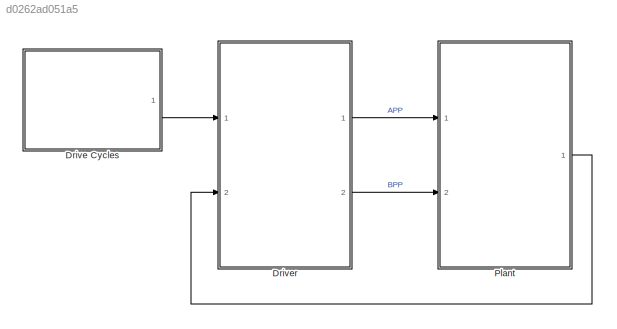
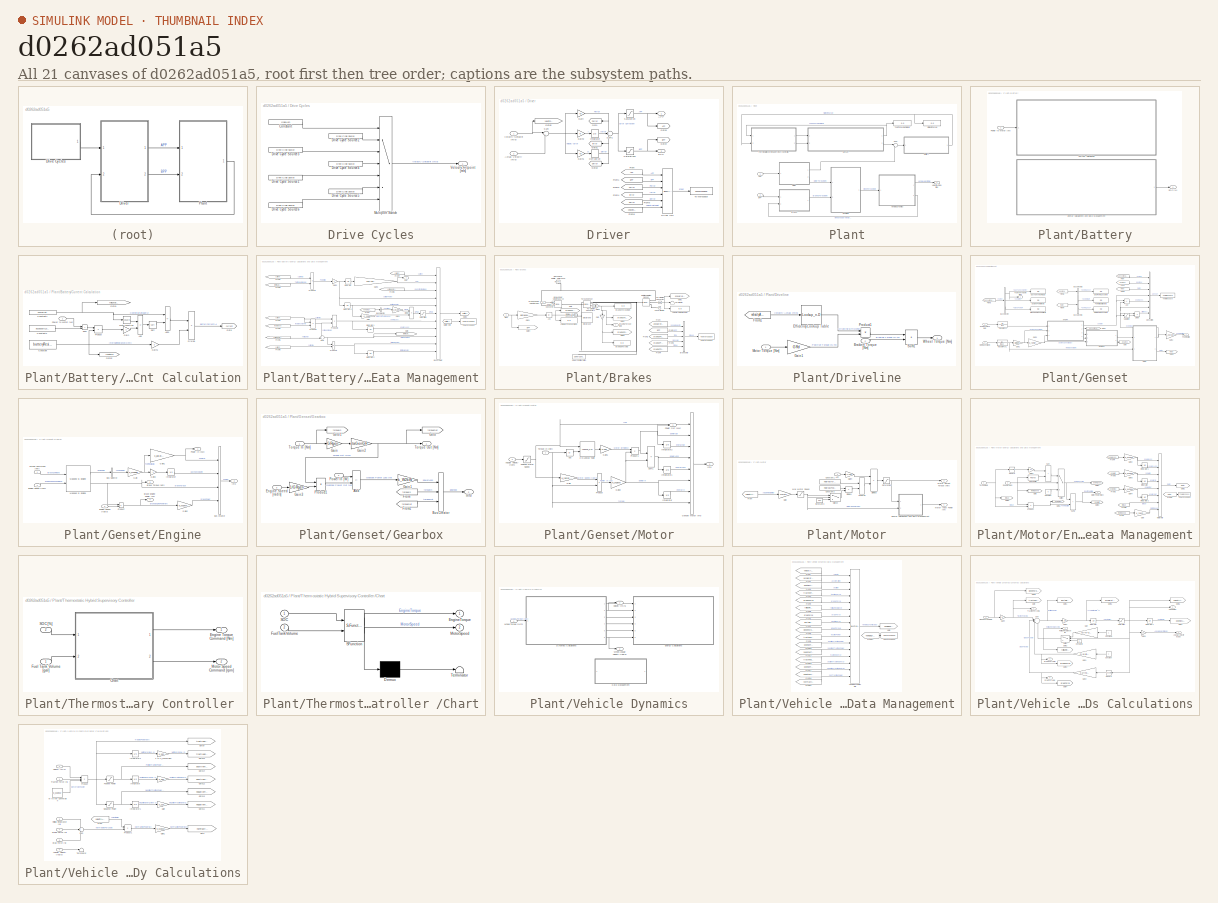
[diagram: thumbnail index - all 21 canvases of the model, root first then tree order]
MODEL slx_d0262ad051a5
KIND model
CONFIG AbsTol = auto
CONFIG EnableMultiTasking = off
CONFIG FixedStep = dt
CONFIG MaxStep = auto
CONFIG MinStep = auto
CONFIG RelTol = 1e-3
CONFIG SampleTimeConstraint = Unconstrained
CONFIG SolverName = ode4
CONFIG StartTime = 0
CONFIG StopTime = tEnd
BLOCK [SubSystem] Drive Cycles
  Ports = [0, 1]
  RequestExecContextInheritance = off
BLOCK [Constant] Drive Cycles/Constant
  Value = cycleNum
BLOCK [Reference] Drive Cycles/Drive Cycle Source1  REF=autolibshared/Drive Cycle Source
  AttributesFormatString = %<cycleVar> (%<tfinal>)
  Ports = [0, 1]
  SourceBlock = autolibshared/Drive Cycle Source
  SourceProductBaseCode = PW,DR,MT,UV,VE
  SourceType = Drive Cycle Source
BLOCK [Reference] Drive Cycles/Drive Cycle Source2  REF=autolibshared/Drive Cycle Source
  AttributesFormatString = %<cycleVar> (%<tfinal>)
  Ports = [0, 1]
  SourceBlock = autolibshared/Drive Cycle Source
  SourceProductBaseCode = PW,DR,MT,UV,VE
  SourceType = Drive Cycle Source
BLOCK [Reference] Drive Cycles/Drive Cycle Source3  REF=autolibshared/Drive Cycle Source
  AttributesFormatString = %<cycleVar> (%<tfinal>)
  Ports = [0, 1]
  SourceBlock = autolibshared/Drive Cycle Source
  SourceProductBaseCode = PW,DR,MT,UV,VE
  SourceType = Drive Cycle Source
BLOCK [Reference] Drive Cycles/Drive Cycle Source4  REF=autolibshared/Drive Cycle Source
  AttributesFormatString = %<cycleVar> (%<tfinal>)
  Ports = [0, 1]
  SourceBlock = autolibshared/Drive Cycle Source
  SourceProductBaseCode = PW,DR,MT,UV,VE
  SourceType = Drive Cycle Source
BLOCK [Reference] Drive Cycles/Drive Cycle Source5  REF=autolibshared/Drive Cycle Source
  AttributesFormatString = %<cycleVar> (%<tfinal>)
  Ports = [0, 1]
  SourceBlock = autolibshared/Drive Cycle Source
  SourceProductBaseCode = PW,DR,MT,UV,VE
  SourceType = Drive Cycle Source
BLOCK [Reference] Drive Cycles/Drive Cycle Source6  REF=autolibshared/Drive Cycle Source
  AttributesFormatString = %<cycleVar> (%<tfinal>)
  Ports = [0, 1]
  SourceBlock = autolibshared/Drive Cycle Source
  SourceProductBaseCode = PW,DR,MT,UV,VE
  SourceType = Drive Cycle Source
BLOCK [MultiPortSwitch] Drive Cycles/Multiport Switch
  InputSameDT = off
  Inputs = 6
  Ports = [7, 1]
  SaturateOnIntegerOverflow = off
BLOCK [Outport] Drive Cycles/Velocity Setpoint [m//s]
  NameLocation = top
BLOCK [SubSystem] Driver
  Ports = [2, 2]
  RequestExecContextInheritance = off
BLOCK [Outport] Driver/APP
BLOCK [Inport] Driver/Actual Velocity [m//s]
  Port = 2
BLOCK [Outport] Driver/BPP
  Port = 2
BLOCK [Derivative] Driver/Derivative
BLOCK [BusCreator] Driver/Driver Info
  DisplayOption = bar
  InheritFromInputs = on
  Inputs = 6
  Ports = [6, 1]
BLOCK [From] Driver/From
  GotoTag = APP
BLOCK [From] Driver/From1
  GotoTag = BPP
BLOCK [From] Driver/From3
  GotoTag = Perror
BLOCK [From] Driver/From4
  GotoTag = Ierror
BLOCK [From] Driver/From5
  GotoTag = Derror
BLOCK [From] Driver/From6
  GotoTag = velocitySetpoint
BLOCK [Gain] Driver/Gain
  Gain = Kp
BLOCK [Gain] Driver/Gain1
  Gain = Kd
BLOCK [Gain] Driver/Gain2
  Gain = Ki
BLOCK [Goto] Driver/Goto
  GotoTag = Perror
  NameLocation = top
BLOCK [Goto] Driver/Goto1
  GotoTag = Ierror
  NameLocation = top
BLOCK [Goto] Driver/Goto2
  GotoTag = Derror
  NameLocation = top
BLOCK [Goto] Driver/Goto3
  GotoTag = APP
BLOCK [Goto] Driver/Goto4
  GotoTag = BPP
BLOCK [Goto] Driver/Goto5
  GotoTag = velocitySetpoint
BLOCK [Integrator] Driver/Integrator
  Ports = [1, 1]
BLOCK [Saturate] Driver/Saturation
  LowerLimit = 0
  UpperLimit = 100
BLOCK [Saturate] Driver/Saturation1
  LowerLimit = -100
  UpperLimit = 0
BLOCK [Sum] Driver/Sum
  Inputs = |+-
  Ports = [2, 1]
BLOCK [Sum] Driver/Sum1
  Inputs = +++
  Ports = [3, 1]
BLOCK [ToWorkspace] Driver/To Workspace
  FixptAsFi = on
  MaxDataPoints = inf
  Ports = [1]
  SampleTime = -1
  SaveFormat = Timeseries
  VariableName = driver
BLOCK [Inport] Driver/Velocity Setpoint [m//s]
BLOCK [SubSystem] Plant
  Ports = [2, 1]
  RequestExecContextInheritance = off
BLOCK [Inport] Plant/APP
BLOCK [Inport] Plant/BPP
  Port = 2
BLOCK [SubSystem] Plant/Battery
  Ports = [1, 1]
  RequestExecContextInheritance = off
BLOCK [SubSystem] Plant/Battery/Current Calculation
  Ports = [1]
  RequestExecContextInheritance = off
BLOCK [Sum] Plant/Battery/Current Calculation/Add
  IconShape = rectangular
  Inputs = +-
  Ports = [2, 1]
BLOCK [Sum] Plant/Battery/Current Calculation/Add1
  IconShape = rectangular
  Inputs = +-
  Ports = [2, 1]
BLOCK [Constant] Plant/Battery/Current Calculation/Constant
  Value = batteryResistance
BLOCK [Constant] Plant/Battery/Current Calculation/Constant1
  SampleTime = -1
  Value = openCircuitVoltage
BLOCK [Constant] Plant/Battery/Current Calculation/Constant2
  Value = accessoryLoad
BLOCK [Product] Plant/Battery/Current Calculation/Divide
  Inputs = */
  Ports = [2, 1]
BLOCK [Gain] Plant/Battery/Current Calculation/Gain
  Gain = 4
BLOCK [Gain] Plant/Battery/Current Calculation/Gain1
  Gain = 2
BLOCK [Goto] Plant/Battery/Current Calculation/Goto
  GotoTag = current
  TagVisibility = global
BLOCK [Goto] Plant/Battery/Current Calculation/Goto1
  GotoTag = voltageOpenCircuit
  TagVisibility = global
BLOCK [Goto] Plant/Battery/Current Calculation/Goto2
  GotoTag = resistance
  TagVisibility = global
BLOCK [Math] Plant/Battery/Current Calculation/Math Function
  Operator = square
  Ports = [1, 1]
  SignedPower = on
BLOCK [Inport] Plant/Battery/Current Calculation/Power to Motor [W]
BLOCK [Product] Plant/Battery/Current Calculation/Product
  Ports = [2, 1]
  RndMeth = Zero
BLOCK [Sqrt] Plant/Battery/Current Calculation/Sqrt
BLOCK [Sum] Plant/Battery/Current Calculation/Sum
  IconShape = rectangular
  Ports = [2, 1]
BLOCK [SubSystem] Plant/Battery/Energy Calculations and Data Management
  Ports = [0, 1]
  RequestExecContextInheritance = off
BLOCK [From] Plant/Battery/Energy Calculations and Data Management/Battery Info
  GotoTag = battery
  TagVisibility = global
BLOCK [BusCreator] Plant/Battery/Energy Calculations and Data Management/Bus Creator
  DisplayOption = bar
  InheritFromInputs = on
  Inputs = 11
  Ports = [11, 1]
BLOCK [BusSelector] Plant/Battery/Energy Calculations and Data Management/Bus Selector
  OutputSignals = position
  Ports = [1, 1]
BLOCK [Product] Plant/Battery/Energy Calculations and Data Management/Divide
  Inputs = */
  Ports = [2, 1]
BLOCK [From] Plant/Battery/Energy Calculations and Data Management/From
  GotoTag = vehicleDynamics
  TagVisibility = global
BLOCK [From] Plant/Battery/Energy Calculations and Data Management/From1
  GotoTag = current
  TagVisibility = global
BLOCK [From] Plant/Battery/Energy Calculations and Data Management/From2
  GotoTag = resistance
  TagVisibility = global
BLOCK [From] Plant/Battery/Energy Calculations and Data Management/From3
  GotoTag = terminalVoltage
BLOCK [From] Plant/Battery/Energy Calculations and Data Management/From4
  GotoTag = current
  TagVisibility = global
BLOCK [From] Plant/Battery/Energy Calculations and Data Management/From5
  GotoTag = voltageOpenCircuit
  TagVisibility = global
BLOCK [From] Plant/Battery/Energy Calculations and Data Management/From6
  GotoTag = current
  TagVisibility = global
BLOCK [From] Plant/Battery/Energy Calculations and Data Management/From7
  GotoTag = current
  TagVisibility = global
BLOCK [From] Plant/Battery/Energy Calculations and Data Management/From8
  GotoTag = voltageOpenCircuit
  TagVisibility = global
BLOCK [Gain] Plant/Battery/Energy Calculations and Data Management/Gain
  Gain = -k_J2gal
BLOCK [Gain] Plant/Battery/Energy Calculations and Data Management/Gain1
  Gain = k_m2mi
BLOCK [Gain] Plant/Battery/Energy Calculations and Data Management/Gain2
  Gain = -1
BLOCK [Gain] Plant/Battery/Energy Calculations and Data Management/Gain3
  Gain = 100/(batteryCapacity * k_kWh2J)
BLOCK [Goto] Plant/Battery/Energy Calculations and Data Management/Goto
  GotoTag = terminalVoltage
BLOCK [Goto] Plant/Battery/Energy Calculations and Data Management/Goto3
  GotoTag = battery
  TagVisibility = global
BLOCK [Integrator] Plant/Battery/Energy Calculations and Data Management/Integrator
  InitialCondition = (SOCi / 100) * batteryCapacity *k_kWh2J
  Ports = [1, 1]
BLOCK [Integrator] Plant/Battery/Energy Calculations and Data Management/Integrator1
  Ports = [1, 1]
BLOCK [Integrator] Plant/Battery/Energy Calculations and Data Management/Integrator2
  Ports = [1, 1]
BLOCK [Integrator] Plant/Battery/Energy Calculations and Data Management/Integrator3
  Ports = [1, 1]
BLOCK [Product] Plant/Battery/Energy Calculations and Data Management/Product1
  Ports = [2, 1]
BLOCK [Product] Plant/Battery/Energy Calculations and Data Management/Product2
  Ports = [2, 1]
BLOCK [Product] Plant/Battery/Energy Calculations and Data Management/Product3
  Ports = [2, 1]
BLOCK [Product] Plant/Battery/Energy Calculations and Data Management/Product4
  Inputs = **
  Ports = [2, 1]
BLOCK [Outport] Plant/Battery/Energy Calculations and Data Management/SOC
BLOCK [Saturate] Plant/Battery/Energy Calculations and Data Management/Saturation
  LowerLimit = 0
  UpperLimit = 300
BLOCK [Sum] Plant/Battery/Energy Calculations and Data Management/Sum
  Inputs = -+|
  Ports = [2, 1]
BLOCK [ToWorkspace] Plant/Battery/Energy Calculations and Data Management/To Workspace
  FixptAsFi = on
  MaxDataPoints = inf
  Ports = [1]
  SampleTime = -1
  SaveFormat = Timeseries
  VariableName = battery
BLOCK [Inport] Plant/Battery/Power to Motor [W]
BLOCK [Outport] Plant/Battery/SOC [%]
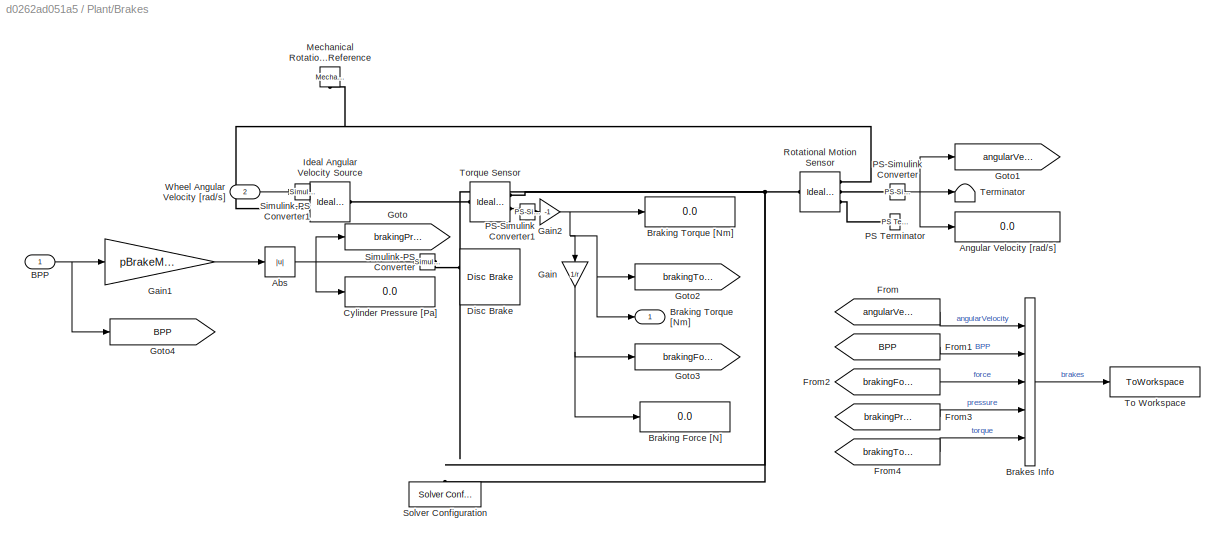
BLOCK [SubSystem] Plant/Brakes
  Ports = [2, 1]
  RequestExecContextInheritance = off
BLOCK [Abs] Plant/Brakes/Abs
  SaturateOnIntegerOverflow = off
BLOCK [Display] Plant/Brakes/Angular Velocity [rad//s]
  Decimation = 1
  Ports = [1]
BLOCK [Inport] Plant/Brakes/BPP
BLOCK [BusCreator] Plant/Brakes/Brakes Info
  DisplayOption = bar
  InheritFromInputs = on
  Inputs = 5
  Ports = [5, 1]
BLOCK [Display] Plant/Brakes/Braking Force [N]
  Decimation = 1
  Ports = [1]
BLOCK [Outport] Plant/Brakes/Braking Torque [Nm]
BLOCK [Display] Plant/Brakes/Cylinder Pressure [Pa]
  Decimation = 1
  Ports = [1]
BLOCK [Reference] Plant/Brakes/Disc Brake  REF=sdl_lib/Brakes & Detents/Rotational/Disc Brake
  Ports = [0, 0, 0, 0, 0, 2]
  SourceBlock = sdl_lib/Brakes & Detents/Rotational/Disc Brake
  SourceProductBaseCode = LD
  SourceType = Disc Brake
BLOCK [From] Plant/Brakes/From
  GotoTag = angularVelocity
BLOCK [From] Plant/Brakes/From1
  GotoTag = BPP
BLOCK [From] Plant/Brakes/From2
  GotoTag = brakingForce
BLOCK [From] Plant/Brakes/From3
  GotoTag = brakingPressure
BLOCK [From] Plant/Brakes/From4
  GotoTag = brakingTorque
BLOCK [Gain] Plant/Brakes/Gain
  Gain = 1/r
  NameLocation = left
BLOCK [Gain] Plant/Brakes/Gain1
  Gain = pBrakeMax/100
BLOCK [Gain] Plant/Brakes/Gain2
  Gain = -1
BLOCK [Goto] Plant/Brakes/Goto
  GotoTag = brakingPressure
BLOCK [Goto] Plant/Brakes/Goto1
  GotoTag = angularVelocity
BLOCK [Goto] Plant/Brakes/Goto2
  GotoTag = brakingTorque
BLOCK [Goto] Plant/Brakes/Goto3
  GotoTag = brakingForce
BLOCK [Goto] Plant/Brakes/Goto4
  GotoTag = BPP
BLOCK [Reference] Plant/Brakes/Ideal Angular Velocity Source  REF=fl_lib/Mechanical/Mechanical Sources/Ideal Angular
Velocity Source
  Ports = [0, 0, 0, 0, 0, 1, 2]
  SourceBlock = fl_lib/Mechanical/Mechanical Sources/Ideal Angular\nVelocity Source
  SourceProductBaseCode = SS
  SourceType = Ideal Angular\nVelocity Source
BLOCK [Reference] Plant/Brakes/Mechanical Rotational Reference  REF=fl_lib/Mechanical/Rotational Elements/Mechanical
Rotational Reference
  NameLocation = left
  Ports = [0, 0, 0, 0, 0, 1]
  SourceBlock = fl_lib/Mechanical/Rotational Elements/Mechanical\nRotational Reference
  SourceProductBaseCode = SS
  SourceType = Mechanical\nRotational Reference
BLOCK [Reference] Plant/Brakes/PS Terminator  REF=fl_lib/Physical Signals/Sinks/PS Terminator
  Ports = [0, 0, 0, 0, 0, 1]
  SourceBlock = fl_lib/Physical Signals/Sinks/PS Terminator
  SourceProductBaseCode = SS
  SourceType = PS Terminator
BLOCK [Reference] Plant/Brakes/PS-Simulink Converter  REF=nesl_utility/PS-Simulink
Converter
  Ports = [0, 1, 0, 0, 0, 1]
  SourceBlock = nesl_utility/PS-Simulink\nConverter
  SourceProductBaseCode = PW,SS
  SourceType = PS-Simulink\nConverter
BLOCK [Reference] Plant/Brakes/PS-Simulink Converter1  REF=nesl_utility/PS-Simulink
Converter
  Ports = [0, 1, 0, 0, 0, 1]
  SourceBlock = nesl_utility/PS-Simulink\nConverter
  SourceProductBaseCode = PW,SS
  SourceType = PS-Simulink\nConverter
BLOCK [Reference] Plant/Brakes/Rotational Motion Sensor  REF=fl_lib/Mechanical/Mechanical Sensors/Ideal Rotational
Motion Sensor
  Ports = [0, 0, 0, 0, 0, 1, 3]
  SourceBlock = fl_lib/Mechanical/Mechanical Sensors/Ideal Rotational\nMotion Sensor
  SourceProductBaseCode = SS
  SourceType = Ideal Rotational\nMotion Sensor
BLOCK [Reference] Plant/Brakes/Simulink-PS Converter  REF=nesl_utility/Simulink-PS
Converter
  Ports = [1, 0, 0, 0, 0, 0, 1]
  SourceBlock = nesl_utility/Simulink-PS\nConverter
  SourceProductBaseCode = PW,SS
  SourceType = Simulink-PS\nConverter
BLOCK [Reference] Plant/Brakes/Simulink-PS Converter1  REF=nesl_utility/Simulink-PS
Converter
  Ports = [1, 0, 0, 0, 0, 0, 1]
  SourceBlock = nesl_utility/Simulink-PS\nConverter
  SourceProductBaseCode = PW,SS
  SourceType = Simulink-PS\nConverter
BLOCK [Reference] Plant/Brakes/Solver Configuration  REF=nesl_utility/Solver
Configuration
  NameLocation = right
  Ports = [0, 0, 0, 0, 0, 0, 1]
  SourceBlock = nesl_utility/Solver\nConfiguration
  SourceProductBaseCode = PW,SS
  SourceType = Solver\nConfiguration
BLOCK [Terminator] Plant/Brakes/Terminator
BLOCK [ToWorkspace] Plant/Brakes/To Workspace
  FixptAsFi = on
  MaxDataPoints = inf
  Ports = [1]
  SampleTime = -1
  SaveFormat = Timeseries
  VariableName = brakes
BLOCK [Reference] Plant/Brakes/Torque Sensor  REF=fl_lib/Mechanical/Mechanical Sensors/Ideal Torque Sensor
  Ports = [0, 0, 0, 0, 0, 1, 2]
  SourceBlock = fl_lib/Mechanical/Mechanical Sensors/Ideal Torque Sensor
  SourceProductBaseCode = SS
  SourceType = Ideal Torque Sensor
BLOCK [Inport] Plant/Brakes/Wheel Angular Velocity [rad//s]
  NameLocation = top
  Port = 2
BLOCK [SubSystem] Plant/Driveline
  Ports = [2, 1]
  RequestExecContextInheritance = off
BLOCK [Inport] Plant/Driveline/Braking Torque [Nm]
  Port = 2
BLOCK [Lookup_n-D] Plant/Driveline/Efficiency Look-up Table
  BreakpointsForDimension1 = EffTableSpeed
  InputPortMap = u0
  InternalRulePriority = Speed
  NumberOfTableDimensions = 1
  Ports = [1, 1]
  RndMeth = Simplest
  Table = EffTableEff
BLOCK [From] Plant/Driveline/From1
  GotoTag = velocityActual
  TagVisibility = global
BLOCK [Gain] Plant/Driveline/Gain1
  Gain = GRd
BLOCK [Inport] Plant/Driveline/Motor Torque [Nm]
BLOCK [Product] Plant/Driveline/Product1
  Ports = [2, 1]
BLOCK [Sum] Plant/Driveline/Sum1
  IconShape = rectangular
  Ports = [2, 1]
BLOCK [Outport] Plant/Driveline/Wheel Torque [Nm]
BLOCK [Display] Plant/Fuel Tank Volume [gal]
  Decimation = 1
  Ports = [1]
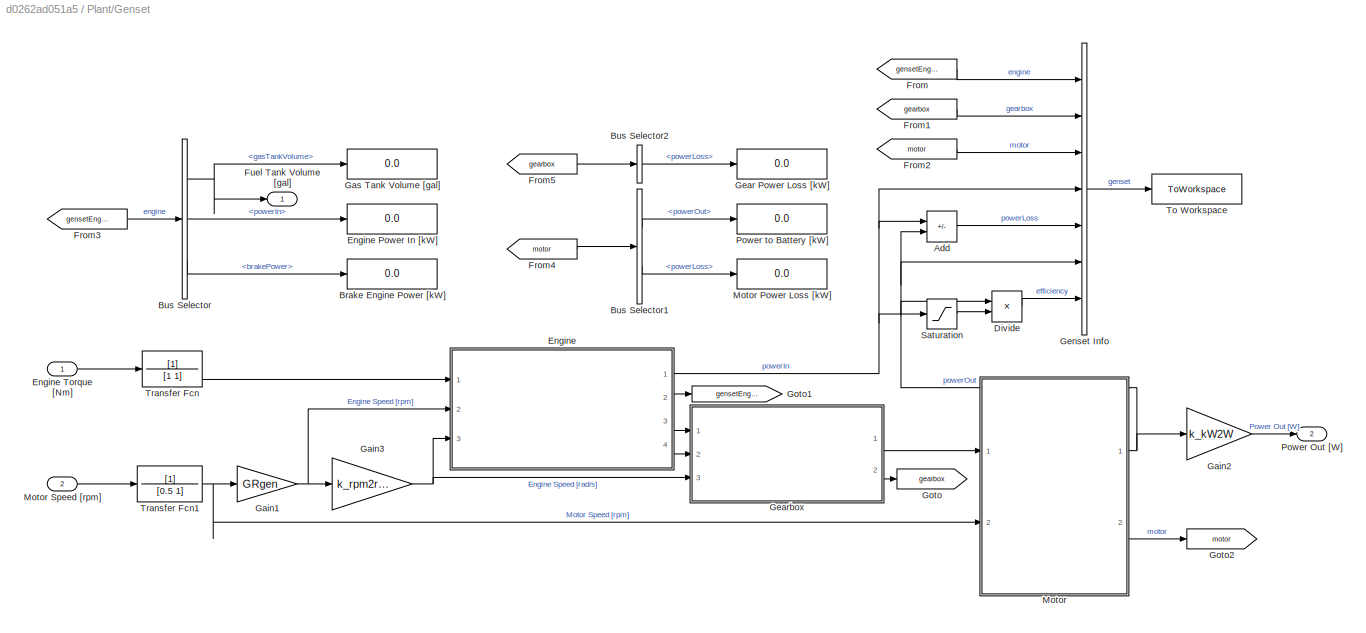
BLOCK [SubSystem] Plant/Genset
  Ports = [2, 2]
  RequestExecContextInheritance = off
BLOCK [Sum] Plant/Genset/Add
  IconShape = rectangular
  Inputs = +-
  Ports = [2, 1]
BLOCK [Display] Plant/Genset/Brake Engine Power [kW]
  Decimation = 1
  Ports = [1]
BLOCK [BusSelector] Plant/Genset/Bus Selector
  OutputSignals = gasTankVolume,powerIn,brakePower
  Ports = [1, 3]
BLOCK [BusSelector] Plant/Genset/Bus Selector1
  OutputSignals = powerOut,powerLoss
  Ports = [1, 2]
BLOCK [BusSelector] Plant/Genset/Bus Selector2
  OutputSignals = powerLoss
  Ports = [1, 1]
BLOCK [Product] Plant/Genset/Divide
  Inputs = */
  Ports = [2, 1]
BLOCK [SubSystem] Plant/Genset/Engine
  Ports = [3, 4]
  RequestExecContextInheritance = off
BLOCK [Display] Plant/Genset/Engine Power In [kW]
  Decimation = 1
  Ports = [1]
BLOCK [Inport] Plant/Genset/Engine Torque [Nm]
BLOCK [Outport] Plant/Genset/Engine/Brake Engine Power [W]
  NameLocation = top
  Port = 4
BLOCK [Outport] Plant/Genset/Engine/Brake Torque [Nm]
  NameLocation = top
  Port = 3
BLOCK [BusCreator] Plant/Genset/Engine/Bus Creator
  DisplayOption = bar
  InheritFromInputs = on
  Inputs = 4
  Ports = [4, 1]
BLOCK [BusSelector] Plant/Genset/Engine/Bus Selector
  OutputSignals = FuelVolFlw
  Ports = [1, 1]
BLOCK [Inport] Plant/Genset/Engine/Engine Speed [rad//s]
  Port = 3
BLOCK [Inport] Plant/Genset/Engine/Engine Speed [rpm]
  Port = 2
BLOCK [Gain] Plant/Genset/Engine/Gain
  Gain = k_m32gal
BLOCK [Gain] Plant/Genset/Engine/Gain1
  Gain = k_gal2kWh*k_hr2s
BLOCK [Gain] Plant/Genset/Engine/Gain2
  Gain = k_W2kW
BLOCK [Gain] Plant/Genset/Engine/Gain3
  Gain = -1
BLOCK [Outport] Plant/Genset/Engine/Info
  Port = 2
BLOCK [Integrator] Plant/Genset/Engine/Integrator
  InitialCondition = initialGasVolume
  Ports = [1, 1]
BLOCK [Reference] Plant/Genset/Engine/Mapped SI Engine  REF=autolibsharedmappedengines/Mapped SI Engine
  Ports = [2, 2]
  SourceBlock = autolibsharedmappedengines/Mapped SI Engine
  SourceProductBaseCode = PW,DR,MT,UV,VE
  SourceType = Mapped SI Engine
BLOCK [Outport] Plant/Genset/Engine/Power In [kW]
BLOCK [Product] Plant/Genset/Engine/Product
  Ports = [2, 1]
BLOCK [Inport] Plant/Genset/Engine/Torque Command [Nm]
  NameLocation = top
BLOCK [From] Plant/Genset/From
  GotoTag = gensetEngine
BLOCK [From] Plant/Genset/From1
  GotoTag = gearbox
BLOCK [From] Plant/Genset/From2
  GotoTag = motor
BLOCK [From] Plant/Genset/From3
  GotoTag = gensetEngine
BLOCK [From] Plant/Genset/From4
  GotoTag = motor
BLOCK [From] Plant/Genset/From5
  GotoTag = gearbox
BLOCK [Outport] Plant/Genset/Fuel Tank Volume [gal]
  NameLocation = top
BLOCK [Gain] Plant/Genset/Gain1
  Gain = GRgen
BLOCK [Gain] Plant/Genset/Gain2
  Gain = k_kW2W
BLOCK [Gain] Plant/Genset/Gain3
  Gain = k_rpm2rps
BLOCK [Display] Plant/Genset/Gas Tank Volume [gal]
  Decimation = 1
  Ports = [1]
BLOCK [Display] Plant/Genset/Gear Power Loss [kW]
  Decimation = 1
  Ports = [1]
BLOCK [SubSystem] Plant/Genset/Gearbox
  Ports = [3, 2]
  RequestExecContextInheritance = off
BLOCK [Sum] Plant/Genset/Gearbox/Add
  IconShape = rectangular
  Inputs = +-
  Ports = [2, 1]
BLOCK [BusCreator] Plant/Genset/Gearbox/Bus Creator
  DisplayOption = bar
  InheritFromInputs = on
  Inputs = 3
  Ports = [3, 1]
BLOCK [Inport] Plant/Genset/Gearbox/Engine Speed [rad//s]
  Port = 3
BLOCK [From] Plant/Genset/Gearbox/From
  GotoTag = torqueIn
BLOCK [From] Plant/Genset/Gearbox/From1
  GotoTag = torqueOut
BLOCK [Gain] Plant/Genset/Gearbox/Gain
  Gain = GRgen
BLOCK [Gain] Plant/Genset/Gearbox/Gain1
  Gain = k_W2kW
BLOCK [Gain] Plant/Genset/Gearbox/Gain2
  Gain = etaGenGR
BLOCK [Gain] Plant/Genset/Gearbox/Gain3
  Gain = 1/GRgen
BLOCK [Goto] Plant/Genset/Gearbox/Goto
  GotoTag = torqueOut
BLOCK [Goto] Plant/Genset/Gearbox/Goto1
  GotoTag = torqueIn
BLOCK [Outport] Plant/Genset/Gearbox/Info
  Port = 2
BLOCK [Inport] Plant/Genset/Gearbox/Power In [W]
  NameLocation = top
  Port = 2
BLOCK [Product] Plant/Genset/Gearbox/Product1
  Ports = [2, 1]
BLOCK [Inport] Plant/Genset/Gearbox/Torque In [Nm]
BLOCK [Outport] Plant/Genset/Gearbox/Torque Out [Nm]
BLOCK [BusCreator] Plant/Genset/Genset Info
  DisplayOption = bar
  InheritFromInputs = on
  Inputs = 7
  Ports = [7, 1]
BLOCK [Goto] Plant/Genset/Goto
  GotoTag = gearbox
BLOCK [Goto] Plant/Genset/Goto1
  GotoTag = gensetEngine
BLOCK [Goto] Plant/Genset/Goto2
  GotoTag = motor
BLOCK [SubSystem] Plant/Genset/Motor
  Ports = [2, 2]
  RequestExecContextInheritance = off
BLOCK [Display] Plant/Genset/Motor Power Loss [kW]
  Decimation = 1
  Ports = [1]
BLOCK [Inport] Plant/Genset/Motor Speed [rpm]
  Port = 2
BLOCK [Lookup_n-D] Plant/Genset/Motor/2-D Lookup Table
  BreakpointsForDimension1 = genMotorData.w_eff_bp
  BreakpointsForDimension2 = genMotorData.T_eff_bp
  InputPortMap = u0,u1
  InternalRulePriority = Speed
  Ports = [2, 1]
  RndMeth = Simplest
  Table = genMotorData.efficiency_table
BLOCK [Abs] Plant/Genset/Motor/Abs
  SaturateOnIntegerOverflow = off
BLOCK [Inport] Plant/Genset/Motor/Angular Velocity [rpm]
  NameLocation = top
  Port = 2
  VarSizeSig = No
BLOCK [Gain] Plant/Genset/Motor/Gain
  Gain = k_rpm2rps
BLOCK [Gain] Plant/Genset/Motor/Gain1
  Gain = 1/100
BLOCK [Gain] Plant/Genset/Motor/Gain2
  Gain = k_W2kW
BLOCK [BusCreator] Plant/Genset/Motor/Genset Motor Info
  DisplayOption = bar
  InheritFromInputs = on
  Inputs = 8
  Ports = [8, 1]
BLOCK [Outport] Plant/Genset/Motor/Info
  Port = 2
BLOCK [Integrator] Plant/Genset/Motor/Integrator
  Ports = [1, 1]
BLOCK [Integrator] Plant/Genset/Motor/Integrator1
  Ports = [1, 1]
BLOCK [Integrator] Plant/Genset/Motor/Integrator2
  Ports = [1, 1]
BLOCK [Saturate] Plant/Genset/Motor/Positive Motor Speed
  LowerLimit = 0
  UpperLimit = inf
BLOCK [Outport] Plant/Genset/Motor/Power Out [kW]
BLOCK [Product] Plant/Genset/Motor/Product
  Ports = [2, 1]
BLOCK [Product] Plant/Genset/Motor/Product1
  Ports = [2, 1]
BLOCK [Sum] Plant/Genset/Motor/Sum1
  IconShape = rectangular
  Inputs = -+
  Ports = [2, 1]
BLOCK [Inport] Plant/Genset/Motor/Torque In [Nm]
  VarSizeSig = No
BLOCK [Outport] Plant/Genset/Power Out [W]
  NameLocation = top
  Port = 2
BLOCK [Display] Plant/Genset/Power to Battery [kW]
  Decimation = 1
  Ports = [1]
BLOCK [Saturate] Plant/Genset/Saturation
  LowerLimit = eps
  UpperLimit = inf
BLOCK [ToWorkspace] Plant/Genset/To Workspace
  FixptAsFi = on
  MaxDataPoints = inf
  Ports = [1]
  SampleTime = -1
  SaveFormat = Timeseries
  VariableName = genset
BLOCK [TransferFcn] Plant/Genset/Transfer Fcn
  Denominator = [1 1]
BLOCK [TransferFcn] Plant/Genset/Transfer Fcn1
  Denominator = [0.5 1]
BLOCK [SubSystem] Plant/Motor
  Ports = [1, 2]
  RequestExecContextInheritance = off
BLOCK [Inport] Plant/Motor/APP
  NameLocation = top
  VarSizeSig = No
BLOCK [Constant] Plant/Motor/Constant1
  Value = motorMaxTorque
BLOCK [Constant] Plant/Motor/Constant2
  Value = motorMaxPower
BLOCK [Constant] Plant/Motor/Constant3
  Value = eps
BLOCK [Product] Plant/Motor/Divide1
  Inputs = */
  Ports = [2, 1]
BLOCK [Product] Plant/Motor/Divide3
  Inputs = **
  Ports = [2, 1]
BLOCK [SubSystem] Plant/Motor/Energy Calculations and Data Management
  Ports = [2, 1]
  RequestExecContextInheritance = off
BLOCK [Constant] Plant/Motor/Energy Calculations and Data Management/Constant
  Value = 0
BLOCK [From] Plant/Motor/Energy Calculations and Data Management/From
  GotoTag = motorSpeed
BLOCK [From] Plant/Motor/Energy Calculations and Data Management/From1
  GotoTag = motor
  TagVisibility = global
BLOCK [From] Plant/Motor/Energy Calculations and Data Management/From2
  GotoTag = powerOut
BLOCK [From] Plant/Motor/Energy Calculations and Data Management/From3
  GotoTag = powerIn
BLOCK [From] Plant/Motor/Energy Calculations and Data Management/From4
  GotoTag = powerLoss
BLOCK [From] Plant/Motor/Energy Calculations and Data Management/From5
  GotoTag = torque
BLOCK [Gain] Plant/Motor/Energy Calculations and Data Management/Gain
  Gain = k_rps2rpm
BLOCK [Gain] Plant/Motor/Energy Calculations and Data Management/Gain1
  Gain = kc
BLOCK [Gain] Plant/Motor/Energy Calculations and Data Management/Gain2
  Gain = k_W2kW
BLOCK [Gain] Plant/Motor/Energy Calculations and Data Management/Gain3
  Gain = k_W2kW
BLOCK [Gain] Plant/Motor/Energy Calculations and Data Management/Gain4
  Gain = k_W2kW
BLOCK [Goto] Plant/Motor/Energy Calculations and Data Management/Goto
  GotoTag = motorSpeed
BLOCK [Goto] Plant/Motor/Energy Calculations and Data Management/Goto1
  GotoTag = motor
  TagVisibility = global
BLOCK [Goto] Plant/Motor/Energy Calculations and Data Management/Goto2
  GotoTag = powerOut
BLOCK [Goto] Plant/Motor/Energy Calculations and Data Management/Goto3
  GotoTag = powerIn
BLOCK [Goto] Plant/Motor/Energy Calculations and Data Management/Goto4
  GotoTag = powerLoss
BLOCK [Goto] Plant/Motor/Energy Calculations and Data Management/Goto5
  GotoTag = torque
BLOCK [Integrator] Plant/Motor/Energy Calculations and Data Management/Integrator
  Ports = [1, 1]
BLOCK [Integrator] Plant/Motor/Energy Calculations and Data Management/Integrator1
  Ports = [1, 1]
BLOCK [Integrator] Plant/Motor/Energy Calculations and Data Management/Integrator2
  Ports = [1, 1]
BLOCK [BusCreator] Plant/Motor/Energy Calculations and Data Management/Motor Info
  DisplayOption = bar
  InheritFromInputs = on
  Inputs = 8
  Ports = [8, 1]
BLOCK [Outport] Plant/Motor/Energy Calculations and Data Management/Motor Power In [W]
BLOCK [Polyval] Plant/Motor/Energy Calculations and Data Management/Polynomial
  Coefs = [kw , 0 ki, C]
BLOCK [Product] Plant/Motor/Energy Calculations and Data Management/Product
  Ports = [2, 1]
BLOCK [Inport] Plant/Motor/Energy Calculations and Data Management/Speed [rad//s]
  Port = 2
BLOCK [Math] Plant/Motor/Energy Calculations and Data Management/Square
  Operator = square
  Ports = [1, 1]
BLOCK [Sum] Plant/Motor/Energy Calculations and Data Management/Sum
  IconShape = rectangular
  Ports = [2, 1]
BLOCK [Sum] Plant/Motor/Energy Calculations and Data Management/Sum1
  IconShape = rectangular
  Ports = [2, 1]
BLOCK [Switch] Plant/Motor/Energy Calculations and Data Management/Switch
  Criteria = u2 > Threshold
  InputSameDT = off
  SaturateOnIntegerOverflow = off
BLOCK [ToWorkspace] Plant/Motor/Energy Calculations and Data Management/To Workspace
  FixptAsFi = on
  MaxDataPoints = inf
  Ports = [1]
  SampleTime = -1
  SaveFormat = Timeseries
  VariableName = motor
BLOCK [Inport] Plant/Motor/Energy Calculations and Data Management/Torque [Nm]
BLOCK [From] Plant/Motor/From
  GotoTag = velocityActual
  TagVisibility = global
BLOCK [Gain] Plant/Motor/Gain
  Gain = GRd/r
BLOCK [Gain] Plant/Motor/Gain4
  Gain = 1/100
BLOCK [Saturate] Plant/Motor/Max Motor Speed
  LowerLimit = 0
  UpperLimit = motorMaxSpeed/k_rps2rpm
BLOCK [MinMax] Plant/Motor/MinMax
  Inputs = 2
  Ports = [2, 1]
BLOCK [Outport] Plant/Motor/Motor Input Power [W]
BLOCK [Outport] Plant/Motor/Motor Output Torque [Nm]
  Port = 2
BLOCK [Saturate] Plant/Motor/Saturation
  LowerLimit = 0
  UpperLimit = motorMaxTorque
BLOCK [Switch] Plant/Motor/Switch
  Criteria = u2 > Threshold
  InputSameDT = off
  SaturateOnIntegerOverflow = off
BLOCK [Display] Plant/State of Charge
  Decimation = 1
  Ports = [1]
BLOCK [Sum] Plant/Sum
  Inputs = |-+
  Ports = [2, 1]
BLOCK [SubSystem] Plant/Thermostatic Hybrid Supervisory Controller 
  Ports = [2, 2]
  RequestExecContextInheritance = off
BLOCK [SubSystem] Plant/Thermostatic Hybrid Supervisory Controller /Chart
  ErrorFcn = Stateflow.Translate.translate
  PermitHierarchicalResolution = ExplicitOnly
  Ports = [2, 2]
  RequestExecContextInheritance = off
  SFBlockType = Chart
  TreatAsAtomicUnit = on
BLOCK [Demux] Plant/Thermostatic Hybrid Supervisory Controller /Chart/ Demux 
  Outputs = 1
  Ports = [1, 1]
BLOCK [S-Function] Plant/Thermostatic Hybrid Supervisory Controller /Chart/ SFunction 
  EnableBusSupport = on
  FunctionName = sf_sfun
  PortCounts = [2 3]
  Ports = [2, 3]
  SFcnIsStateOwnerBlock = off
  SFunctionDeploymentMode = off
  Tag = Stateflow S-Function 3
BLOCK [Terminator] Plant/Thermostatic Hybrid Supervisory Controller /Chart/ Terminator 
BLOCK [Outport] Plant/Thermostatic Hybrid Supervisory Controller /Chart/EngineTorque
BLOCK [Inport] Plant/Thermostatic Hybrid Supervisory Controller /Chart/FuelTankVolume
  Port = 2
BLOCK [Outport] Plant/Thermostatic Hybrid Supervisory Controller /Chart/MotorSpeed
  Port = 2
BLOCK [Inport] Plant/Thermostatic Hybrid Supervisory Controller /Chart/SOC
BLOCK [Outport] Plant/Thermostatic Hybrid Supervisory Controller /Engine Torque Command [Nm]
BLOCK [Inport] Plant/Thermostatic Hybrid Supervisory Controller /Fuel Tank Volume [gal]
BLOCK [Outport] Plant/Thermostatic Hybrid Supervisory Controller /Motor Speed Command [rpm]
  Port = 2
BLOCK [Inport] Plant/Thermostatic Hybrid Supervisory Controller /SOC [%]
  Port = 2
BLOCK [SubSystem] Plant/Vehicle Dynamics
  Ports = [1, 2]
  RequestExecContextInheritance = off
BLOCK [SubSystem] Plant/Vehicle Dynamics/Data Management
  Ports = []
  RequestExecContextInheritance = off
BLOCK [From] Plant/Vehicle Dynamics/Data Management/From
  GotoTag = velocityActual
  TagVisibility = global
BLOCK [From] Plant/Vehicle Dynamics/Data Management/From1
  GotoTag = accelerationActual
  TagVisibility = global
BLOCK [From] Plant/Vehicle Dynamics/Data Management/From10
  GotoTag = positiveTractivePower
  TagVisibility = global
BLOCK [From] Plant/Vehicle Dynamics/Data Management/From11
  GotoTag = positiveTractiveEnergy
  TagVisibility = global
BLOCK [From] Plant/Vehicle Dynamics/Data Management/From12
  GotoTag = negativeTractivePower
  TagVisibility = global
BLOCK [From] Plant/Vehicle Dynamics/Data Management/From13
  GotoTag = tractiveEnergy
  TagVisibility = global
BLOCK [From] Plant/Vehicle Dynamics/Data Management/From15
  GotoTag = negativeTractiveEnergy
  TagVisibility = global
BLOCK [From] Plant/Vehicle Dynamics/Data Management/From17
  GotoTag = vehicleDynamics
  TagVisibility = global
BLOCK [From] Plant/Vehicle Dynamics/Data Management/From2
  GotoTag = positionActual
  TagVisibility = global
BLOCK [From] Plant/Vehicle Dynamics/Data Management/From21
  GotoTag = nonTractivePower
  TagVisibility = global
BLOCK [From] Plant/Vehicle Dynamics/Data Management/From3
  GotoTag = tractiveForce
  TagVisibility = global
BLOCK [From] Plant/Vehicle Dynamics/Data Management/From4
  GotoTag = gradeForce
  TagVisibility = global
BLOCK [From] Plant/Vehicle Dynamics/Data Management/From5
  GotoTag = rollingResistance
  TagVisibility = global
BLOCK [From] Plant/Vehicle Dynamics/Data Management/From6
  GotoTag = dragForce
  TagVisibility = global
BLOCK [From] Plant/Vehicle Dynamics/Data Management/From7
  GotoTag = inertialForce
  TagVisibility = global
BLOCK [From] Plant/Vehicle Dynamics/Data Management/From8
  GotoTag = wheelTorque
  TagVisibility = global
BLOCK [From] Plant/Vehicle Dynamics/Data Management/From9
  GotoTag = tractivePower
  TagVisibility = global
BLOCK [Goto] Plant/Vehicle Dynamics/Data Management/Goto
  GotoTag = vehicleDynamics
  TagVisibility = global
BLOCK [ToWorkspace] Plant/Vehicle Dynamics/Data Management/To Workspace
  FixptAsFi = on
  MaxDataPoints = inf
  Ports = [1]
  SampleTime = -1
  SaveFormat = Timeseries
  VariableName = vehicleDynamics
BLOCK [BusCreator] Plant/Vehicle Dynamics/Data Management/Vehicle Dynamics Info
  DisplayOption = bar
  InheritFromInputs = on
  Inputs = 16
  Ports = [16, 1]
BLOCK [SubSystem] Plant/Vehicle Dynamics/Dynamics Calculations
  Ports = [1, 6]
  RequestExecContextInheritance = off
BLOCK [Outport] Plant/Vehicle Dynamics/Dynamics Calculations/Angular Velocity [rad//s]
  Port = 6
BLOCK [Constant] Plant/Vehicle Dynamics/Dynamics Calculations/Constant
  NameLocation = top
BLOCK [Constant] Plant/Vehicle Dynamics/Dynamics Calculations/Constant1
  NameLocation = top
BLOCK [Constant] Plant/Vehicle Dynamics/Dynamics Calculations/Constant2
  NameLocation = top
  Value = 0
BLOCK [Outport] Plant/Vehicle Dynamics/Dynamics Calculations/Drag Force [N]
  Port = 5
BLOCK [Gain] Plant/Vehicle Dynamics/Dynamics Calculations/Gain
  Gain = Crr*m*g*cos(theta)
  NameLocation = top
BLOCK [Gain] Plant/Vehicle Dynamics/Dynamics Calculations/Gain1
  Gain = m*g*sin(theta)
  NameLocation = top
BLOCK [Gain] Plant/Vehicle Dynamics/Dynamics Calculations/Gain2
  Gain = 0.5*rho*Af*Cd
  NameLocation = top
BLOCK [Gain] Plant/Vehicle Dynamics/Dynamics Calculations/Gain3
  Gain = 1/m
BLOCK [Gain] Plant/Vehicle Dynamics/Dynamics Calculations/Gain4
  Gain = 1/r
BLOCK [Gain] Plant/Vehicle Dynamics/Dynamics Calculations/Gain6
  Gain = 1/r
BLOCK [Goto] Plant/Vehicle Dynamics/Dynamics Calculations/Goto
  GotoTag = tractiveForce
  TagVisibility = global
BLOCK [Goto] Plant/Vehicle Dynamics/Dynamics Calculations/Goto1
  GotoTag = inertialForce
  TagVisibility = global
BLOCK [Goto] Plant/Vehicle Dynamics/Dynamics Calculations/Goto2
  GotoTag = rollingResistance
  TagVisibility = global
BLOCK [Goto] Plant/Vehicle Dynamics/Dynamics Calculations/Goto3
  GotoTag = gradeForce
  TagVisibility = global
BLOCK [Goto] Plant/Vehicle Dynamics/Dynamics Calculations/Goto4
  GotoTag = dragForce
  TagVisibility = global
BLOCK [Goto] Plant/Vehicle Dynamics/Dynamics Calculations/Goto5
  GotoTag = accelerationActual
  TagVisibility = global
BLOCK [Goto] Plant/Vehicle Dynamics/Dynamics Calculations/Goto6
  GotoTag = velocityActual
  TagVisibility = global
BLOCK [Goto] Plant/Vehicle Dynamics/Dynamics Calculations/Goto7
  GotoTag = positionActual
  TagVisibility = global
BLOCK [Goto] Plant/Vehicle Dynamics/Dynamics Calculations/Goto8
  GotoTag = wheelTorque
  TagVisibility = global
BLOCK [Outport] Plant/Vehicle Dynamics/Dynamics Calculations/Grade Force [N]
  Port = 4
BLOCK [Integrator] Plant/Vehicle Dynamics/Dynamics Calculations/Integrator
  InitialCondition = v0
  Ports = [1, 1]
BLOCK [Integrator] Plant/Vehicle Dynamics/Dynamics Calculations/Integrator1
  InitialCondition = x0
  Ports = [1, 1]
BLOCK [Outport] Plant/Vehicle Dynamics/Dynamics Calculations/Rolling Resistance [N]
  Port = 3
BLOCK [Saturate] Plant/Vehicle Dynamics/Dynamics Calculations/Saturation
  LinearizeAsGain = off
  LowerLimit = 0
  UpperLimit = inf
BLOCK [Math] Plant/Vehicle Dynamics/Dynamics Calculations/Square
  NameLocation = top
  Operator = square
  Ports = [1, 1]
BLOCK [Sum] Plant/Vehicle Dynamics/Dynamics Calculations/Sum
  Inputs = |+---
  Ports = [4, 1]
BLOCK [Switch] Plant/Vehicle Dynamics/Dynamics Calculations/Switch
  Criteria = u2 > Threshold
  InputSameDT = off
  NameLocation = top
  SaturateOnIntegerOverflow = off
BLOCK [Outport] Plant/Vehicle Dynamics/Dynamics Calculations/Tractive Force [N]
BLOCK [Outport] Plant/Vehicle Dynamics/Dynamics Calculations/Velocity [m//s]
  Port = 2
BLOCK [Inport] Plant/Vehicle Dynamics/Dynamics Calculations/Wheel Torque [Nm]
BLOCK [SubSystem] Plant/Vehicle Dynamics/Energy Calculations
  Ports = [6]
  RequestExecContextInheritance = off
BLOCK [Gain] Plant/Vehicle Dynamics/Energy Calculations/ 
  Gain = k_s2h
BLOCK [Inport] Plant/Vehicle Dynamics/Energy Calculations/Angular Velocity [rad//s]
  Port = 6
BLOCK [Inport] Plant/Vehicle Dynamics/Energy Calculations/Drag Force [N]
  Port = 5
BLOCK [From] Plant/Vehicle Dynamics/Energy Calculations/From
  GotoTag = velocityActual
  TagVisibility = global
BLOCK [Gain] Plant/Vehicle Dynamics/Energy Calculations/Gain
  Gain = k_s2h
BLOCK [Gain] Plant/Vehicle Dynamics/Energy Calculations/Gain1
  Gain = k_W2kW
BLOCK [Goto] Plant/Vehicle Dynamics/Energy Calculations/Goto
  GotoTag = nonTractivePower
  TagVisibility = global
BLOCK [Goto] Plant/Vehicle Dynamics/Energy Calculations/Goto10
  GotoTag = tractiveEnergy
  TagVisibility = global
BLOCK [Goto] Plant/Vehicle Dynamics/Energy Calculations/Goto11
  GotoTag = negativeTractiveEnergy
  TagVisibility = global
BLOCK [Goto] Plant/Vehicle Dynamics/Energy Calculations/Goto12
  GotoTag = positiveTractiveEnergy
  TagVisibility = global
BLOCK [Goto] Plant/Vehicle Dynamics/Energy Calculations/Goto13
  GotoTag = negativeTractivePower
  TagVisibility = global
BLOCK [Goto] Plant/Vehicle Dynamics/Energy Calculations/Goto14
  GotoTag = positiveTractivePower
  TagVisibility = global
BLOCK [Goto] Plant/Vehicle Dynamics/Energy Calculations/Goto9
  GotoTag = tractivePower
  TagVisibility = global
BLOCK [Inport] Plant/Vehicle Dynamics/Energy Calculations/Grade Force [N]
  Port = 4
BLOCK [Integrator] Plant/Vehicle Dynamics/Energy Calculations/Integrator
  Ports = [1, 1]
BLOCK [Integrator] Plant/Vehicle Dynamics/Energy Calculations/Integrator1
  Ports = [1, 1]
BLOCK [Integrator] Plant/Vehicle Dynamics/Energy Calculations/Integrator2
  Ports = [1, 1]
BLOCK [Saturate] Plant/Vehicle Dynamics/Energy Calculations/Negative Power
  LowerLimit = -inf
  UpperLimit = 0
BLOCK [Saturate] Plant/Vehicle Dynamics/Energy Calculations/Positive Power
  LowerLimit = 0
  UpperLimit = inf
BLOCK [Product] Plant/Vehicle Dynamics/Energy Calculations/Product
  Inputs = 3
  Ports = [3, 1]
BLOCK [Product] Plant/Vehicle Dynamics/Energy Calculations/Product1
  Ports = [2, 1]
BLOCK [Inport] Plant/Vehicle Dynamics/Energy Calculations/Rolling Resistance [N]
  Port = 3
BLOCK [Sum] Plant/Vehicle Dynamics/Energy Calculations/Sum
  Inputs = +++
  Ports = [3, 1]
BLOCK [Terminator] Plant/Vehicle Dynamics/Energy Calculations/Terminator
BLOCK [Inport] Plant/Vehicle Dynamics/Energy Calculations/Tractive Force [N]
BLOCK [Inport] Plant/Vehicle Dynamics/Energy Calculations/Velocity [m//s]
  Port = 2
BLOCK [Constant] Plant/Vehicle Dynamics/Energy Calculations/W to kW Conversion
  Value = k_W2kW
BLOCK [Gain] Plant/Vehicle Dynamics/Energy Calculations/s to h_conversion
  Gain = k_s2h
BLOCK [Outport] Plant/Vehicle Dynamics/Velocity [m//s]
BLOCK [Outport] Plant/Vehicle Dynamics/Wheel Angular Velocity [rad//s]
  Port = 2
BLOCK [Inport] Plant/Vehicle Dynamics/Wheel Torque [Nm]
BLOCK [Outport] Plant/Velocity Actual [m//s]
LINE Drive Cycles/Constant:1 -> Drive Cycles/Multiport Switch:1
LINE Drive Cycles/Drive Cycle Source1:1 -> Drive Cycles/Multiport Switch:5
LINE Drive Cycles/Drive Cycle Source2:1 -> Drive Cycles/Multiport Switch:2
LINE Drive Cycles/Drive Cycle Source3:1 -> Drive Cycles/Multiport Switch:3
LINE Drive Cycles/Drive Cycle Source4:1 -> Drive Cycles/Multiport Switch:4
LINE Drive Cycles/Drive Cycle Source5:1 -> Drive Cycles/Multiport Switch:6
LINE Drive Cycles/Drive Cycle Source6:1 -> Drive Cycles/Multiport Switch:7
LINE Drive Cycles/Multiport Switch:1 -> Drive Cycles/Velocity Setpoint [m//s]:1
LINE Drive Cycles:1 -> Driver:1
LINE Driver/Actual Velocity [m//s]:1 -> Driver/Sum:2
NET Driver/Derivative:1 -> Driver/Goto1:1, Driver/Goto2:1, Driver/Sum1:3
LINE Driver/Driver Info:1 -> Driver/To Workspace:1
LINE Driver/From1:1 -> Driver/Driver Info:2
LINE Driver/From3:1 -> Driver/Driver Info:3
LINE Driver/From4:1 -> Driver/Driver Info:4
LINE Driver/From5:1 -> Driver/Driver Info:5
LINE Driver/From6:1 -> Driver/Driver Info:6
LINE Driver/From:1 -> Driver/Driver Info:1
LINE Driver/Gain1:1 -> Driver/Derivative:1
LINE Driver/Gain2:1 -> Driver/Integrator:1
NET Driver/Gain:1 -> Driver/Goto:1, Driver/Sum1:1
LINE Driver/Integrator:1 -> Driver/Sum1:2
NET Driver/Saturation1:1 -> Driver/BPP:1, Driver/Goto4:1
NET Driver/Saturation:1 -> Driver/APP:1, Driver/Goto3:1
NET Driver/Sum1:1 -> Driver/Saturation1:1, Driver/Saturation:1
NET Driver/Sum:1 -> Driver/Gain1:1, Driver/Gain2:1, Driver/Gain:1
NET Driver/Velocity Setpoint [m//s]:1 -> Driver/Goto5:1, Driver/Sum:1
LINE Driver:1 -> Plant:1
LINE Driver:2 -> Plant:2
LINE Plant/APP:1 -> Plant/Motor:1
LINE Plant/BPP:1 -> Plant/Brakes:1
LINE Plant/Battery/Current Calculation/Add1:1 -> Plant/Battery/Current Calculation/Divide:1
LINE Plant/Battery/Current Calculation/Add:1 -> Plant/Battery/Current Calculation/Sqrt:1
NET Plant/Battery/Current Calculation/Constant1:1 -> Plant/Battery/Current Calculation/Add1:1, Plant/Battery/Current Calculation/Goto1:1, Plant/Battery/Current Calculation/Math Function:1
LINE Plant/Battery/Current Calculation/Constant2:1 -> Plant/Battery/Current Calculation/Sum:2
NET Plant/Battery/Current Calculation/Constant:1 -> Plant/Battery/Current Calculation/Gain1:1, Plant/Battery/Current Calculation/Goto2:1, Plant/Battery/Current Calculation/Product:2
LINE Plant/Battery/Current Calculation/Divide:1 -> Plant/Battery/Current Calculation/Goto:1
LINE Plant/Battery/Current Calculation/Gain1:1 -> Plant/Battery/Current Calculation/Divide:2
LINE Plant/Battery/Current Calculation/Gain:1 -> Plant/Battery/Current Calculation/Add:2
LINE Plant/Battery/Current Calculation/Math Function:1 -> Plant/Battery/Current Calculation/Add:1
LINE Plant/Battery/Current Calculation/Power to Motor [W]:1 -> Plant/Battery/Current Calculation/Sum:1
LINE Plant/Battery/Current Calculation/Product:1 -> Plant/Battery/Current Calculation/Gain:1
LINE Plant/Battery/Current Calculation/Sqrt:1 -> Plant/Battery/Current Calculation/Add1:2
LINE Plant/Battery/Current Calculation/Sum:1 -> Plant/Battery/Current Calculation/Product:1
LINE Plant/Battery/Energy Calculations and Data Management/Battery Info:1 -> Plant/Battery/Energy Calculations and Data Management/To Workspace:1
LINE Plant/Battery/Energy Calculations and Data Management/Bus Creator:1 -> Plant/Battery/Energy Calculations and Data Management/Goto3:1
LINE Plant/Battery/Energy Calculations and Data Management/Bus Selector:1 -> Plant/Battery/Energy Calculations and Data Management/Gain1:1
LINE Plant/Battery/Energy Calculations and Data Management/Divide:1 -> Plant/Battery/Energy Calculations and Data Management/Saturation:1
LINE Plant/Battery/Energy Calculations and Data Management/From1:1 -> Plant/Battery/Energy Calculations and Data Management/Product1:1
LINE Plant/Battery/Energy Calculations and Data Management/From2:1 -> Plant/Battery/Energy Calculations and Data Management/Product2:2
LINE Plant/Battery/Energy Calculations and Data Management/From3:1 -> Plant/Battery/Energy Calculations and Data Management/Product1:2
NET Plant/Battery/Energy Calculations and Data Management/From4:1 -> Plant/Battery/Energy Calculations and Data Management/Product2:1, Plant/Battery/Energy Calculations and Data Management/Product3:1
LINE Plant/Battery/Energy Calculations and Data Management/From5:1 -> Plant/Battery/Energy Calculations and Data Management/Sum:2
LINE Plant/Battery/Energy Calculations and Data Management/From6:1 -> Plant/Battery/Energy Calculations and Data Management/Product4:2
LINE Plant/Battery/Energy Calculations and Data Management/From7:1 -> Plant/Battery/Energy Calculations and Data Management/Bus Creator:1
LINE Plant/Battery/Energy Calculations and Data Management/From8:1 -> Plant/Battery/Energy Calculations and Data Management/Bus Creator:3
LINE Plant/Battery/Energy Calculations and Data Management/From:1 -> Plant/Battery/Energy Calculations and Data Management/Bus Selector:1
LINE Plant/Battery/Energy Calculations and Data Management/Gain1:1 -> Plant/Battery/Energy Calculations and Data Management/Divide:1
NET Plant/Battery/Energy Calculations and Data Management/Gain2:1 -> Plant/Battery/Energy Calculations and Data Management/Bus Creator:4, Plant/Battery/Energy Calculations and Data Management/Integrator3:1, Plant/Battery/Energy Calculations and Data Management/Integrator:1
NET Plant/Battery/Energy Calculations and Data Management/Gain3:1 -> Plant/Battery/Energy Calculations and Data Management/Bus Creator:2, Plant/Battery/Energy Calculations and Data Management/SOC:1
LINE Plant/Battery/Energy Calculations and Data Management/Gain:1 -> Plant/Battery/Energy Calculations and Data Management/Divide:2
LINE Plant/Battery/Energy Calculations and Data Management/Integrator1:1 -> Plant/Battery/Energy Calculations and Data Management/Bus Creator:8
LINE Plant/Battery/Energy Calculations and Data Management/Integrator2:1 -> Plant/Battery/Energy Calculations and Data Management/Bus Creator:11
NET Plant/Battery/Energy Calculations and Data Management/Integrator3:1 -> Plant/Battery/Energy Calculations and Data Management/Bus Creator:5, Plant/Battery/Energy Calculations and Data Management/Gain:1
LINE Plant/Battery/Energy Calculations and Data Management/Integrator:1 -> Plant/Battery/Energy Calculations and Data Management/Gain3:1
LINE Plant/Battery/Energy Calculations and Data Management/Product1:1 -> Plant/Battery/Energy Calculations and Data Management/Gain2:1
NET Plant/Battery/Energy Calculations and Data Management/Product2:1 -> Plant/Battery/Energy Calculations and Data Management/Product3:2, Plant/Battery/Energy Calculations and Data Management/Sum:1
NET Plant/Battery/Energy Calculations and Data Management/Product3:1 -> Plant/Battery/Energy Calculations and Data Management/Bus Creator:7, Plant/Battery/Energy Calculations and Data Management/Integrator1:1
NET Plant/Battery/Energy Calculations and Data Management/Product4:1 -> Plant/Battery/Energy Calculations and Data Management/Bus Creator:10, Plant/Battery/Energy Calculations and Data Management/Integrator2:1
LINE Plant/Battery/Energy Calculations and Data Management/Saturation:1 -> Plant/Battery/Energy Calculations and Data Management/Bus Creator:6
NET Plant/Battery/Energy Calculations and Data Management/Sum:1 -> Plant/Battery/Energy Calculations and Data Management/Bus Creator:9, Plant/Battery/Energy Calculations and Data Management/Goto:1, Plant/Battery/Energy Calculations and Data Management/Product4:1
LINE Plant/Battery/Energy Calculations and Data Management:1 -> Plant/Battery/SOC [%]:1
LINE Plant/Battery/Power to Motor [W]:1 -> Plant/Battery/Current Calculation:1
NET Plant/Battery:1 -> Plant/State of Charge:1, Plant/Thermostatic Hybrid Supervisory Controller :2
NET Plant/Brakes/Abs:1 -> Plant/Brakes/Cylinder Pressure [Pa]:1, Plant/Brakes/Goto:1, Plant/Brakes/Simulink-PS Converter:1
NET Plant/Brakes/BPP:1 -> Plant/Brakes/Gain1:1, Plant/Brakes/Goto4:1
LINE Plant/Brakes/Brakes Info:1 -> Plant/Brakes/To Workspace:1
LINE Plant/Brakes/From1:1 -> Plant/Brakes/Brakes Info:2
LINE Plant/Brakes/From2:1 -> Plant/Brakes/Brakes Info:3
LINE Plant/Brakes/From3:1 -> Plant/Brakes/Brakes Info:4
LINE Plant/Brakes/From4:1 -> Plant/Brakes/Brakes Info:5
LINE Plant/Brakes/From:1 -> Plant/Brakes/Brakes Info:1
LINE Plant/Brakes/Gain1:1 -> Plant/Brakes/Abs:1
NET Plant/Brakes/Gain2:1 -> Plant/Brakes/Braking Torque [Nm]:1, Plant/Brakes/Gain:1, Plant/Brakes/Goto2:1
NET Plant/Brakes/Gain:1 -> Plant/Brakes/Braking Force [N]:1, Plant/Brakes/Goto3:1
LINE Plant/Brakes/PS-Simulink Converter1:1 -> Plant/Brakes/Gain2:1
NET Plant/Brakes/PS-Simulink Converter:1 -> Plant/Brakes/Angular Velocity [rad//s]:1, Plant/Brakes/Goto1:1, Plant/Brakes/Terminator:1
LINE Plant/Brakes/Wheel Angular Velocity [rad//s]:1 -> Plant/Brakes/Simulink-PS Converter1:1
LINE Plant/Brakes:1 -> Plant/Driveline:2
LINE Plant/Driveline/Braking Torque [Nm]:1 -> Plant/Driveline/Sum1:2
LINE Plant/Driveline/Efficiency Look-up Table:1 -> Plant/Driveline/Product1:1
LINE Plant/Driveline/From1:1 -> Plant/Driveline/Efficiency Look-up Table:1
LINE Plant/Driveline/Gain1:1 -> Plant/Driveline/Product1:2
LINE Plant/Driveline/Motor Torque [Nm]:1 -> Plant/Driveline/Gain1:1
LINE Plant/Driveline/Product1:1 -> Plant/Driveline/Sum1:1
LINE Plant/Driveline/Sum1:1 -> Plant/Driveline/Wheel Torque [Nm]:1
LINE Plant/Driveline:1 -> Plant/Vehicle Dynamics:1
LINE Plant/Genset/Add:1 -> Plant/Genset/Genset Info:5
LINE Plant/Genset/Bus Selector1:1 -> Plant/Genset/Power to Battery [kW]:1
LINE Plant/Genset/Bus Selector1:2 -> Plant/Genset/Motor Power Loss [kW]:1
LINE Plant/Genset/Bus Selector2:1 -> Plant/Genset/Gear Power Loss [kW]:1
NET Plant/Genset/Bus Selector:1 -> Plant/Genset/Fuel Tank Volume [gal]:1, Plant/Genset/Gas Tank Volume [gal]:1
LINE Plant/Genset/Bus Selector:2 -> Plant/Genset/Engine Power In [kW]:1
LINE Plant/Genset/Bus Selector:3 -> Plant/Genset/Brake Engine Power [kW]:1
LINE Plant/Genset/Divide:1 -> Plant/Genset/Genset Info:7
LINE Plant/Genset/Engine Torque [Nm]:1 -> Plant/Genset/Transfer Fcn:1
LINE Plant/Genset/Engine/Bus Creator:1 -> Plant/Genset/Engine/Info:1
LINE Plant/Genset/Engine/Bus Selector:1 -> Plant/Genset/Engine/Gain:1
LINE Plant/Genset/Engine/Engine Speed [rad//s]:1 -> Plant/Genset/Engine/Product:2
LINE Plant/Genset/Engine/Engine Speed [rpm]:1 -> Plant/Genset/Engine/Mapped SI Engine:2
NET Plant/Genset/Engine/Gain1:1 -> Plant/Genset/Engine/Bus Creator:1, Plant/Genset/Engine/Power In [kW]:1
LINE Plant/Genset/Engine/Gain2:1 -> Plant/Genset/Engine/Bus Creator:4
LINE Plant/Genset/Engine/Gain3:1 -> Plant/Genset/Engine/Integrator:1
NET Plant/Genset/Engine/Gain:1 -> Plant/Genset/Engine/Gain1:1, Plant/Genset/Engine/Gain3:1
LINE Plant/Genset/Engine/Integrator:1 -> Plant/Genset/Engine/Bus Creator:2
LINE Plant/Genset/Engine/Mapped SI Engine:1 -> Plant/Genset/Engine/Bus Selector:1
NET Plant/Genset/Engine/Mapped SI Engine:2 -> Plant/Genset/Engine/Brake Torque [Nm]:1, Plant/Genset/Engine/Bus Creator:3, Plant/Genset/Engine/Product:1
NET Plant/Genset/Engine/Product:1 -> Plant/Genset/Engine/Brake Engine Power [W]:1, Plant/Genset/Engine/Gain2:1
LINE Plant/Genset/Engine/Torque Command [Nm]:1 -> Plant/Genset/Engine/Mapped SI Engine:1
NET Plant/Genset/Engine:1 -> Plant/Genset/Add:1, Plant/Genset/Genset Info:4, Plant/Genset/Saturation:1
LINE Plant/Genset/Engine:2 -> Plant/Genset/Goto1:1
LINE Plant/Genset/Engine:3 -> Plant/Genset/Gearbox:1
LINE Plant/Genset/Engine:4 -> Plant/Genset/Gearbox:2
LINE Plant/Genset/From1:1 -> Plant/Genset/Genset Info:2
LINE Plant/Genset/From2:1 -> Plant/Genset/Genset Info:3
LINE Plant/Genset/From3:1 -> Plant/Genset/Bus Selector:1
LINE Plant/Genset/From4:1 -> Plant/Genset/Bus Selector1:1
LINE Plant/Genset/From5:1 -> Plant/Genset/Bus Selector2:1
LINE Plant/Genset/From:1 -> Plant/Genset/Genset Info:1
NET Plant/Genset/Gain1:1 -> Plant/Genset/Engine:2, Plant/Genset/Gain3:1
LINE Plant/Genset/Gain2:1 -> Plant/Genset/Power Out [W]:1
NET Plant/Genset/Gain3:1 -> Plant/Genset/Engine:3, Plant/Genset/Gearbox:3
LINE Plant/Genset/Gearbox/Add:1 -> Plant/Genset/Gearbox/Gain1:1
LINE Plant/Genset/Gearbox/Bus Creator:1 -> Plant/Genset/Gearbox/Info:1
LINE Plant/Genset/Gearbox/Engine Speed [rad//s]:1 -> Plant/Genset/Gearbox/Gain3:1
LINE Plant/Genset/Gearbox/From1:1 -> Plant/Genset/Gearbox/Bus Creator:3
LINE Plant/Genset/Gearbox/From:1 -> Plant/Genset/Gearbox/Bus Creator:2
LINE Plant/Genset/Gearbox/Gain1:1 -> Plant/Genset/Gearbox/Bus Creator:1
NET Plant/Genset/Gearbox/Gain2:1 -> Plant/Genset/Gearbox/Goto:1, Plant/Genset/Gearbox/Product1:1, Plant/Genset/Gearbox/Torque Out [Nm]:1
LINE Plant/Genset/Gearbox/Gain3:1 -> Plant/Genset/Gearbox/Product1:2
LINE Plant/Genset/Gearbox/Gain:1 -> Plant/Genset/Gearbox/Gain2:1
LINE Plant/Genset/Gearbox/Power In [W]:1 -> Plant/Genset/Gearbox/Add:1
LINE Plant/Genset/Gearbox/Product1:1 -> Plant/Genset/Gearbox/Add:2
NET Plant/Genset/Gearbox/Torque In [Nm]:1 -> Plant/Genset/Gearbox/Gain:1, Plant/Genset/Gearbox/Goto1:1
LINE Plant/Genset/Gearbox:1 -> Plant/Genset/Motor:1
LINE Plant/Genset/Gearbox:2 -> Plant/Genset/Goto:1
LINE Plant/Genset/Genset Info:1 -> Plant/Genset/To Workspace:1
LINE Plant/Genset/Motor Speed [rpm]:1 -> Plant/Genset/Transfer Fcn1:1
LINE Plant/Genset/Motor/2-D Lookup Table:1 -> Plant/Genset/Motor/Gain1:1
LINE Plant/Genset/Motor/Abs:1 -> Plant/Genset/Motor/2-D Lookup Table:2
LINE Plant/Genset/Motor/Angular Velocity [rpm]:1 -> Plant/Genset/Motor/Positive Motor Speed:1
LINE Plant/Genset/Motor/Gain1:1 -> Plant/Genset/Motor/Product1:1
NET Plant/Genset/Motor/Gain2:1 -> Plant/Genset/Motor/Genset Motor Info:6, Plant/Genset/Motor/Integrator:1, Plant/Genset/Motor/Product1:2, Plant/Genset/Motor/Sum1:2
LINE Plant/Genset/Motor/Gain:1 -> Plant/Genset/Motor/Product:1
LINE Plant/Genset/Motor/Genset Motor Info:1 -> Plant/Genset/Motor/Info:1
LINE Plant/Genset/Motor/Integrator1:1 -> Plant/Genset/Motor/Genset Motor Info:5
LINE Plant/Genset/Motor/Integrator2:1 -> Plant/Genset/Motor/Genset Motor Info:3
LINE Plant/Genset/Motor/Integrator:1 -> Plant/Genset/Motor/Genset Motor Info:7
NET Plant/Genset/Motor/Positive Motor Speed:1 -> Plant/Genset/Motor/2-D Lookup Table:1, Plant/Genset/Motor/Gain:1, Plant/Genset/Motor/Genset Motor Info:1
NET Plant/Genset/Motor/Product1:1 -> Plant/Genset/Motor/Genset Motor Info:2, Plant/Genset/Motor/Integrator2:1, Plant/Genset/Motor/Power Out [kW]:1, Plant/Genset/Motor/Sum1:1
LINE Plant/Genset/Motor/Product:1 -> Plant/Genset/Motor/Gain2:1
NET Plant/Genset/Motor/Sum1:1 -> Plant/Genset/Motor/Genset Motor Info:4, Plant/Genset/Motor/Integrator1:1
NET Plant/Genset/Motor/Torque In [Nm]:1 -> Plant/Genset/Motor/Abs:1, Plant/Genset/Motor/Genset Motor Info:8, Plant/Genset/Motor/Product:2
NET Plant/Genset/Motor:1 -> Plant/Genset/Add:2, Plant/Genset/Divide:1, Plant/Genset/Gain2:1, Plant/Genset/Genset Info:6
LINE Plant/Genset/Motor:2 -> Plant/Genset/Goto2:1
LINE Plant/Genset/Saturation:1 -> Plant/Genset/Divide:2
NET Plant/Genset/Transfer Fcn1:1 -> Plant/Genset/Gain1:1, Plant/Genset/Motor:2
LINE Plant/Genset/Transfer Fcn:1 -> Plant/Genset/Engine:1
NET Plant/Genset:1 -> Plant/Fuel Tank Volume [gal]:1, Plant/Thermostatic Hybrid Supervisory Controller :1
LINE Plant/Genset:2 -> Plant/Sum:1
LINE Plant/Motor/APP:1 -> Plant/Motor/Gain4:1
LINE Plant/Motor/Constant1:1 -> Plant/Motor/MinMax:1
LINE Plant/Motor/Constant2:1 -> Plant/Motor/Divide1:1
LINE Plant/Motor/Constant3:1 -> Plant/Motor/Switch:3
LINE Plant/Motor/Divide1:1 -> Plant/Motor/MinMax:2
LINE Plant/Motor/Divide3:1 -> Plant/Motor/Saturation:1
LINE Plant/Motor/Energy Calculations and Data Management/Constant:1 -> Plant/Motor/Energy Calculations and Data Management/Switch:3
LINE Plant/Motor/Energy Calculations and Data Management/From1:1 -> Plant/Motor/Energy Calculations and Data Management/To Workspace:1
LINE Plant/Motor/Energy Calculations and Data Management/From2:1 -> Plant/Motor/Energy Calculations and Data Management/Gain4:1
LINE Plant/Motor/Energy Calculations and Data Management/From3:1 -> Plant/Motor/Energy Calculations and Data Management/Gain3:1
LINE Plant/Motor/Energy Calculations and Data Management/From4:1 -> Plant/Motor/Energy Calculations and Data Management/Gain2:1
LINE Plant/Motor/Energy Calculations and Data Management/From5:1 -> Plant/Motor/Energy Calculations and Data Management/Motor Info:7
LINE Plant/Motor/Energy Calculations and Data Management/From:1 -> Plant/Motor/Energy Calculations and Data Management/Gain:1
LINE Plant/Motor/Energy Calculations and Data Management/Gain1:1 -> Plant/Motor/Energy Calculations and Data Management/Sum:1
NET Plant/Motor/Energy Calculations and Data Management/Gain2:1 -> Plant/Motor/Energy Calculations and Data Management/Integrator1:1, Plant/Motor/Energy Calculations and Data Management/Motor Info:1
NET Plant/Motor/Energy Calculations and Data Management/Gain3:1 -> Plant/Motor/Energy Calculations and Data Management/Integrator:1, Plant/Motor/Energy Calculations and Data Management/Motor Info:3
NET Plant/Motor/Energy Calculations and Data Management/Gain4:1 -> Plant/Motor/Energy Calculations and Data Management/Integrator2:1, Plant/Motor/Energy Calculations and Data Management/Motor Info:5
LINE Plant/Motor/Energy Calculations and Data Management/Gain:1 -> Plant/Motor/Energy Calculations and Data Management/Motor Info:8
LINE Plant/Motor/Energy Calculations and Data Management/Integrator1:1 -> Plant/Motor/Energy Calculations and Data Management/Motor Info:2
LINE Plant/Motor/Energy Calculations and Data Management/Integrator2:1 -> Plant/Motor/Energy Calculations and Data Management/Motor Info:6
LINE Plant/Motor/Energy Calculations and Data Management/Integrator:1 -> Plant/Motor/Energy Calculations and Data Management/Motor Info:4
LINE Plant/Motor/Energy Calculations and Data Management/Motor Info:1 -> Plant/Motor/Energy Calculations and Data Management/Goto1:1
LINE Plant/Motor/Energy Calculations and Data Management/Polynomial:1 -> Plant/Motor/Energy Calculations and Data Management/Sum:2
NET Plant/Motor/Energy Calculations and Data Management/Product:1 -> Plant/Motor/Energy Calculations and Data Management/Goto2:1, Plant/Motor/Energy Calculations and Data Management/Sum1:2
NET Plant/Motor/Energy Calculations and Data Management/Speed [rad//s]:1 -> Plant/Motor/Energy Calculations and Data Management/Goto:1, Plant/Motor/Energy Calculations and Data Management/Polynomial:1, Plant/Motor/Energy Calculations and Data Management/Product:1, Plant/Motor/Energy Calculations and Data Management/Switch:2
LINE Plant/Motor/Energy Calculations and Data Management/Square:1 -> Plant/Motor/Energy Calculations and Data Management/Gain1:1
NET Plant/Motor/Energy Calculations and Data Management/Sum1:1 -> Plant/Motor/Energy Calculations and Data Management/Goto3:1, Plant/Motor/Energy Calculations and Data Management/Motor Power In [W]:1
LINE Plant/Motor/Energy Calculations and Data Management/Sum:1 -> Plant/Motor/Energy Calculations and Data Management/Switch:1
NET Plant/Motor/Energy Calculations and Data Management/Switch:1 -> Plant/Motor/Energy Calculations and Data Management/Goto4:1, Plant/Motor/Energy Calculations and Data Management/Sum1:1
NET Plant/Motor/Energy Calculations and Data Management/Torque [Nm]:1 -> Plant/Motor/Energy Calculations and Data Management/Goto5:1, Plant/Motor/Energy Calculations and Data Management/Product:2, Plant/Motor/Energy Calculations and Data Management/Square:1
LINE Plant/Motor/Energy Calculations and Data Management:1 -> Plant/Motor/Motor Input Power [W]:1
LINE Plant/Motor/From:1 -> Plant/Motor/Gain:1
LINE Plant/Motor/Gain4:1 -> Plant/Motor/Divide3:1
LINE Plant/Motor/Gain:1 -> Plant/Motor/Max Motor Speed:1
NET Plant/Motor/Max Motor Speed:1 -> Plant/Motor/Energy Calculations and Data Management:2, Plant/Motor/Switch:1, Plant/Motor/Switch:2
LINE Plant/Motor/MinMax:1 -> Plant/Motor/Divide3:2
NET Plant/Motor/Saturation:1 -> Plant/Motor/Energy Calculations and Data Management:1, Plant/Motor/Motor Output Torque [Nm]:1
LINE Plant/Motor/Switch:1 -> Plant/Motor/Divide1:2
LINE Plant/Motor:1 -> Plant/Sum:2
LINE Plant/Motor:2 -> Plant/Driveline:1
LINE Plant/Sum:1 -> Plant/Battery:1
LINE Plant/Thermostatic Hybrid Supervisory Controller /Chart:1 -> Plant/Thermostatic Hybrid Supervisory Controller /Engine Torque Command [Nm]:1
LINE Plant/Thermostatic Hybrid Supervisory Controller /Chart:2 -> Plant/Thermostatic Hybrid Supervisory Controller /Motor Speed Command [rpm]:1
LINE Plant/Thermostatic Hybrid Supervisory Controller /Fuel Tank Volume [gal]:1 -> Plant/Thermostatic Hybrid Supervisory Controller /Chart:2
LINE Plant/Thermostatic Hybrid Supervisory Controller /SOC [%]:1 -> Plant/Thermostatic Hybrid Supervisory Controller /Chart:1
LINE Plant/Thermostatic Hybrid Supervisory Controller :1 -> Plant/Genset:1
LINE Plant/Thermostatic Hybrid Supervisory Controller :2 -> Plant/Genset:2
LINE Plant/Vehicle Dynamics/Data Management/From10:1 -> Plant/Vehicle Dynamics/Data Management/Vehicle Dynamics Info:11
LINE Plant/Vehicle Dynamics/Data Management/From11:1 -> Plant/Vehicle Dynamics/Data Management/Vehicle Dynamics Info:14
LINE Plant/Vehicle Dynamics/Data Management/From12:1 -> Plant/Vehicle Dynamics/Data Management/Vehicle Dynamics Info:12
LINE Plant/Vehicle Dynamics/Data Management/From13:1 -> Plant/Vehicle Dynamics/Data Management/Vehicle Dynamics Info:13
LINE Plant/Vehicle Dynamics/Data Management/From15:1 -> Plant/Vehicle Dynamics/Data Management/Vehicle Dynamics Info:15
LINE Plant/Vehicle Dynamics/Data Management/From17:1 -> Plant/Vehicle Dynamics/Data Management/To Workspace:1
LINE Plant/Vehicle Dynamics/Data Management/From1:1 -> Plant/Vehicle Dynamics/Data Management/Vehicle Dynamics Info:2
LINE Plant/Vehicle Dynamics/Data Management/From21:1 -> Plant/Vehicle Dynamics/Data Management/Vehicle Dynamics Info:16
LINE Plant/Vehicle Dynamics/Data Management/From2:1 -> Plant/Vehicle Dynamics/Data Management/Vehicle Dynamics Info:3
LINE Plant/Vehicle Dynamics/Data Management/From3:1 -> Plant/Vehicle Dynamics/Data Management/Vehicle Dynamics Info:4
LINE Plant/Vehicle Dynamics/Data Management/From4:1 -> Plant/Vehicle Dynamics/Data Management/Vehicle Dynamics Info:5
LINE Plant/Vehicle Dynamics/Data Management/From5:1 -> Plant/Vehicle Dynamics/Data Management/Vehicle Dynamics Info:6
LINE Plant/Vehicle Dynamics/Data Management/From6:1 -> Plant/Vehicle Dynamics/Data Management/Vehicle Dynamics Info:7
LINE Plant/Vehicle Dynamics/Data Management/From7:1 -> Plant/Vehicle Dynamics/Data Management/Vehicle Dynamics Info:8
LINE Plant/Vehicle Dynamics/Data Management/From8:1 -> Plant/Vehicle Dynamics/Data Management/Vehicle Dynamics Info:9
LINE Plant/Vehicle Dynamics/Data Management/From9:1 -> Plant/Vehicle Dynamics/Data Management/Vehicle Dynamics Info:10
LINE Plant/Vehicle Dynamics/Data Management/From:1 -> Plant/Vehicle Dynamics/Data Management/Vehicle Dynamics Info:1
LINE Plant/Vehicle Dynamics/Data Management/Vehicle Dynamics Info:1 -> Plant/Vehicle Dynamics/Data Management/Goto:1
LINE Plant/Vehicle Dynamics/Dynamics Calculations/Constant1:1 -> Plant/Vehicle Dynamics/Dynamics Calculations/Gain:1
LINE Plant/Vehicle Dynamics/Dynamics Calculations/Constant2:1 -> Plant/Vehicle Dynamics/Dynamics Calculations/Switch:3
LINE Plant/Vehicle Dynamics/Dynamics Calculations/Constant:1 -> Plant/Vehicle Dynamics/Dynamics Calculations/Gain1:1
NET Plant/Vehicle Dynamics/Dynamics Calculations/Gain1:1 -> Plant/Vehicle Dynamics/Dynamics Calculations/Goto3:1, Plant/Vehicle Dynamics/Dynamics Calculations/Grade Force [N]:1, Plant/Vehicle Dynamics/Dynamics Calculations/Sum:3
NET Plant/Vehicle Dynamics/Dynamics Calculations/Gain2:1 -> Plant/Vehicle Dynamics/Dynamics Calculations/Drag Force [N]:1, Plant/Vehicle Dynamics/Dynamics Calculations/Goto4:1, Plant/Vehicle Dynamics/Dynamics Calculations/Sum:2
NET Plant/Vehicle Dynamics/Dynamics Calculations/Gain3:1 -> Plant/Vehicle Dynamics/Dynamics Calculations/Goto5:1, Plant/Vehicle Dynamics/Dynamics Calculations/Integrator:1
NET Plant/Vehicle Dynamics/Dynamics Calculations/Gain4:1 -> Plant/Vehicle Dynamics/Dynamics Calculations/Goto:1, Plant/Vehicle Dynamics/Dynamics Calculations/Sum:1, Plant/Vehicle Dynamics/Dynamics Calculations/Tractive Force [N]:1
LINE Plant/Vehicle Dynamics/Dynamics Calculations/Gain6:1 -> Plant/Vehicle Dynamics/Dynamics Calculations/Angular Velocity [rad//s]:1
LINE Plant/Vehicle Dynamics/Dynamics Calculations/Gain:1 -> Plant/Vehicle Dynamics/Dynamics Calculations/Switch:1
LINE Plant/Vehicle Dynamics/Dynamics Calculations/Integrator1:1 -> Plant/Vehicle Dynamics/Dynamics Calculations/Goto7:1
LINE Plant/Vehicle Dynamics/Dynamics Calculations/Integrator:1 -> Plant/Vehicle Dynamics/Dynamics Calculations/Saturation:1
NET Plant/Vehicle Dynamics/Dynamics Calculations/Saturation:1 -> Plant/Vehicle Dynamics/Dynamics Calculations/Gain6:1, Plant/Vehicle Dynamics/Dynamics Calculations/Goto6:1, Plant/Vehicle Dynamics/Dynamics Calculations/Integrator1:1, Plant/Vehicle Dynamics/Dynamics Calculations/Square:1, Plant/Vehicle Dynamics/Dynamics Calculations/Switch:2, Plant/Vehicle Dynamics/Dynamics Calculations/Velocity [m//s]:1
LINE Plant/Vehicle Dynamics/Dynamics Calculations/Square:1 -> Plant/Vehicle Dynamics/Dynamics Calculations/Gain2:1
NET Plant/Vehicle Dynamics/Dynamics Calculations/Sum:1 -> Plant/Vehicle Dynamics/Dynamics Calculations/Gain3:1, Plant/Vehicle Dynamics/Dynamics Calculations/Goto1:1
NET Plant/Vehicle Dynamics/Dynamics Calculations/Switch:1 -> Plant/Vehicle Dynamics/Dynamics Calculations/Goto2:1, Plant/Vehicle Dynamics/Dynamics Calculations/Rolling Resistance [N]:1, Plant/Vehicle Dynamics/Dynamics Calculations/Sum:4
NET Plant/Vehicle Dynamics/Dynamics Calculations/Wheel Torque [Nm]:1 -> Plant/Vehicle Dynamics/Dynamics Calculations/Gain4:1, Plant/Vehicle Dynamics/Dynamics Calculations/Goto8:1
LINE Plant/Vehicle Dynamics/Dynamics Calculations:1 -> Plant/Vehicle Dynamics/Energy Calculations:1
NET Plant/Vehicle Dynamics/Dynamics Calculations:2 -> Plant/Vehicle Dynamics/Energy Calculations:2, Plant/Vehicle Dynamics/Velocity [m//s]:1
LINE Plant/Vehicle Dynamics/Dynamics Calculations:3 -> Plant/Vehicle Dynamics/Energy Calculations:3
LINE Plant/Vehicle Dynamics/Dynamics Calculations:4 -> Plant/Vehicle Dynamics/Energy Calculations:4
LINE Plant/Vehicle Dynamics/Dynamics Calculations:5 -> Plant/Vehicle Dynamics/Energy Calculations:5
NET Plant/Vehicle Dynamics/Dynamics Calculations:6 -> Plant/Vehicle Dynamics/Energy Calculations:6, Plant/Vehicle Dynamics/Wheel Angular Velocity [rad//s]:1
LINE Plant/Vehicle Dynamics/Energy Calculations/ :1 -> Plant/Vehicle Dynamics/Energy Calculations/Goto12:1
LINE Plant/Vehicle Dynamics/Energy Calculations/Angular Velocity [rad//s]:1 -> Plant/Vehicle Dynamics/Energy Calculations/Terminator:1
LINE Plant/Vehicle Dynamics/Energy Calculations/Drag Force [N]:1 -> Plant/Vehicle Dynamics/Energy Calculations/Sum:3
LINE Plant/Vehicle Dynamics/Energy Calculations/From:1 -> Plant/Vehicle Dynamics/Energy Calculations/Product1:1
LINE Plant/Vehicle Dynamics/Energy Calculations/Gain1:1 -> Plant/Vehicle Dynamics/Energy Calculations/Goto:1
LINE Plant/Vehicle Dynamics/Energy Calculations/Gain:1 -> Plant/Vehicle Dynamics/Energy Calculations/Goto11:1
LINE Plant/Vehicle Dynamics/Energy Calculations/Grade Force [N]:1 -> Plant/Vehicle Dynamics/Energy Calculations/Sum:2
LINE Plant/Vehicle Dynamics/Energy Calculations/Integrator1:1 -> Plant/Vehicle Dynamics/Energy Calculations/Gain:1
LINE Plant/Vehicle Dynamics/Energy Calculations/Integrator2:1 -> Plant/Vehicle Dynamics/Energy Calculations/s to h_conversion:1
LINE Plant/Vehicle Dynamics/Energy Calculations/Integrator:1 -> Plant/Vehicle Dynamics/Energy Calculations/ :1
NET Plant/Vehicle Dynamics/Energy Calculations/Negative Power:1 -> Plant/Vehicle Dynamics/Energy Calculations/Goto13:1, Plant/Vehicle Dynamics/Energy Calculations/Integrator1:1
NET Plant/Vehicle Dynamics/Energy Calculations/Positive Power:1 -> Plant/Vehicle Dynamics/Energy Calculations/Goto14:1, Plant/Vehicle Dynamics/Energy Calculations/Integrator:1
LINE Plant/Vehicle Dynamics/Energy Calculations/Product1:1 -> Plant/Vehicle Dynamics/Energy Calculations/Gain1:1
NET Plant/Vehicle Dynamics/Energy Calculations/Product:1 -> Plant/Vehicle Dynamics/Energy Calculations/Goto9:1, Plant/Vehicle Dynamics/Energy Calculations/Integrator2:1, Plant/Vehicle Dynamics/Energy Calculations/Negative Power:1, Plant/Vehicle Dynamics/Energy Calculations/Positive Power:1
LINE Plant/Vehicle Dynamics/Energy Calculations/Rolling Resistance [N]:1 -> Plant/Vehicle Dynamics/Energy Calculations/Sum:1
LINE Plant/Vehicle Dynamics/Energy Calculations/Sum:1 -> Plant/Vehicle Dynamics/Energy Calculations/Product1:2
LINE Plant/Vehicle Dynamics/Energy Calculations/Tractive Force [N]:1 -> Plant/Vehicle Dynamics/Energy Calculations/Product:2
LINE Plant/Vehicle Dynamics/Energy Calculations/Velocity [m//s]:1 -> Plant/Vehicle Dynamics/Energy Calculations/Product:1
LINE Plant/Vehicle Dynamics/Energy Calculations/W to kW Conversion:1 -> Plant/Vehicle Dynamics/Energy Calculations/Product:3
LINE Plant/Vehicle Dynamics/Energy Calculations/s to h_conversion:1 -> Plant/Vehicle Dynamics/Energy Calculations/Goto10:1
LINE Plant/Vehicle Dynamics/Wheel Torque [Nm]:1 -> Plant/Vehicle Dynamics/Dynamics Calculations:1
LINE Plant/Vehicle Dynamics:1 -> Plant/Velocity Actual [m//s]:1
LINE Plant/Vehicle Dynamics:2 -> Plant/Brakes:2
LINE Plant:1 -> Driver:2
PLINE Plant/Brakes/Disc Brake:LConn1 -- Plant/Brakes/Simulink-PS Converter:RConn1
PNET net1: Plant/Brakes/Disc Brake:LConn2 -- Plant/Brakes/Rotational Motion Sensor:LConn1 -- Plant/Brakes/Solver Configuration:RConn1 -- Plant/Brakes/Torque Sensor:RConn1
PLINE Plant/Brakes/Ideal Angular Velocity Source:LConn1 -- Plant/Brakes/Torque Sensor:LConn1
PLINE Plant/Brakes/Ideal Angular Velocity Source:RConn1 -- Plant/Brakes/Simulink-PS Converter1:RConn1
PNET net2: Plant/Brakes/Ideal Angular Velocity Source:RConn2 -- Plant/Brakes/Mechanical Rotational Reference:LConn1 -- Plant/Brakes/Rotational Motion Sensor:RConn1
PLINE Plant/Brakes/PS Terminator:LConn1 -- Plant/Brakes/Rotational Motion Sensor:RConn3
PLINE Plant/Brakes/PS-Simulink Converter1:LConn1 -- Plant/Brakes/Torque Sensor:RConn2
PLINE Plant/Brakes/PS-Simulink Converter:LConn1 -- Plant/Brakes/Rotational Motion Sensor:RConn2
note: NET lines group one-source signal fan-out (src -> all destinations, sorted); 1:1 wires keep LINE; PNET lines group multi-terminal physical nets as a canonical sorted terminal list (undirected conserving connections); 2-terminal nets keep the pairwise PLINE form
CHART Plant/Thermostatic Hybrid Supervisory Controller /Chart states=2 transitions=3
  STATE_LABEL 'second\nentry:\nEngineTorque = 65;\nMotorSpeed = 800;'
  STATE_LABEL 'first\nentry:\nEngineTorque = 0;\nMotorSpeed = 0;'
CHART  states=0 transitions=0
